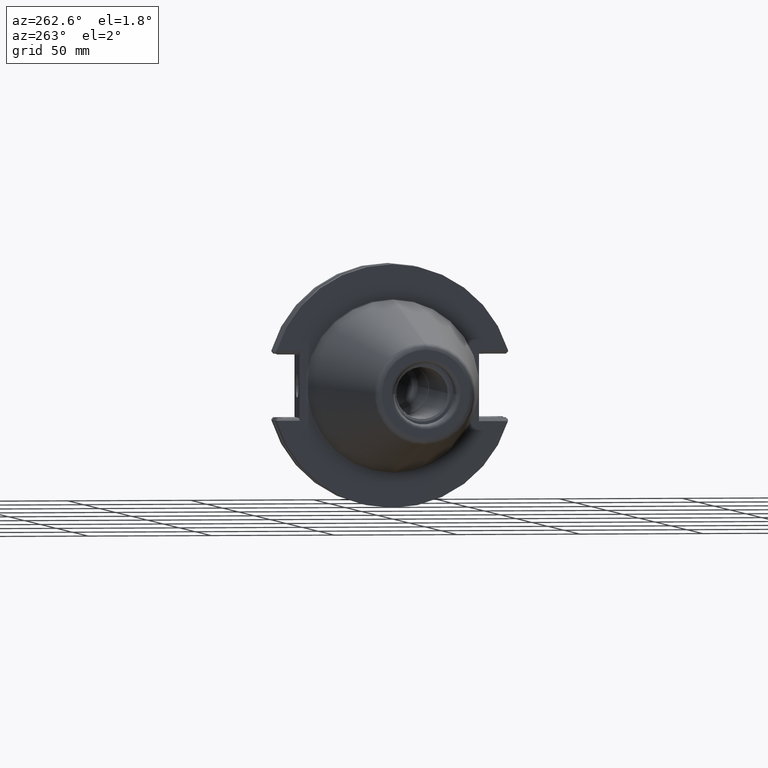
[diagram: clean part render]
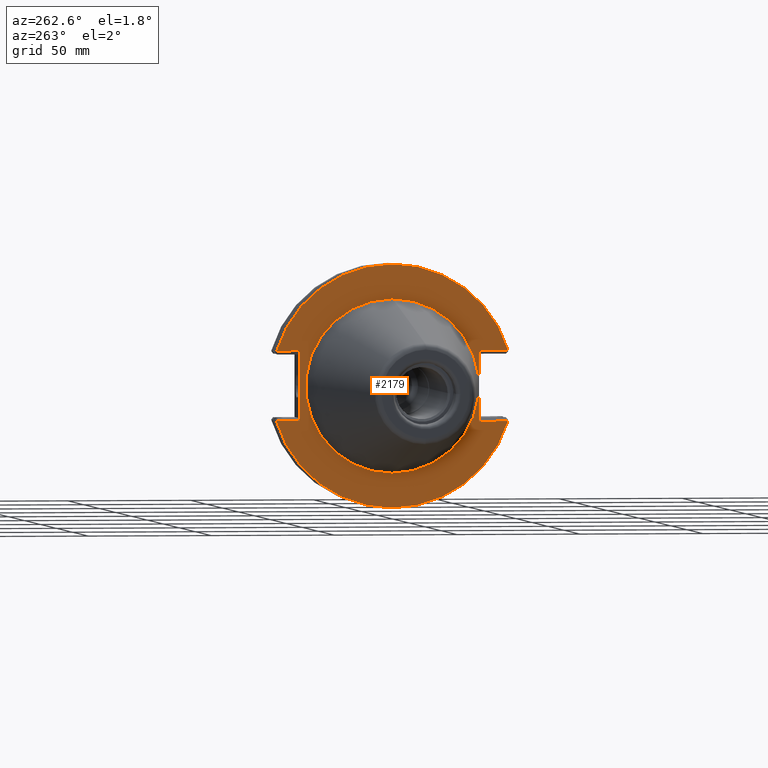
[diagram: same view with one face highlighted and labeled with its STEP entity id]
A machine part, auxiliary view. The second image highlights one B-rep face of the part: STEP entity #2179.
In plain terms, the highlighted planar face has unit normal (1, 0, 0).
Its self-contained STEP definition (entity closure, byte-faithful):
#547=CARTESIAN_POINT('',(3.15E0,0.E0,0.E0));
#548=DIRECTION('',(1.E0,0.E0,0.E0));
#549=DIRECTION('',(0.E0,0.E0,1.E0));
#550=AXIS2_PLACEMENT_3D('',#547,#548,#549);
#552=CARTESIAN_POINT('',(3.15E0,0.E0,0.E0));
#553=DIRECTION('',(1.E0,0.E0,0.E0));
#554=DIRECTION('',(0.E0,0.E0,-1.E0));
#555=AXIS2_PLACEMENT_3D('',#552,#553,#554);
#557=DIRECTION('',(0.E0,1.E0,0.E0));
#558=VECTOR('',#557,9.477745407877E0);
#559=CARTESIAN_POINT('',(3.15E0,3.7719E1,-1.385E1));
#560=LINE('',#559,#558);
#561=DIRECTION('',(0.E0,-1.E0,0.E0));
#562=VECTOR('',#561,9.354853212266E0);
#563=CARTESIAN_POINT('',(3.15E0,4.707385321227E1,1.435E1));
#564=LINE('',#563,#562);
#565=DIRECTION('',(0.E0,-1.E0,0.E0));
#566=VECTOR('',#565,1.176785321227E1);
#567=CARTESIAN_POINT('',(3.15E0,-3.5306E1,1.435E1));
#568=LINE('',#567,#566);
#569=DIRECTION('',(0.E0,1.E0,0.E0));
#570=VECTOR('',#569,1.176785321227E1);
#571=CARTESIAN_POINT('',(3.15E0,-4.707385321227E1,-1.435E1));
#572=LINE('',#571,#570);
#573=DIRECTION('',(1.390924008965E-14,5.991861250008E-1,-8.006097598747E-1));
#574=VECTOR('',#573,3.192763997083E-2);
#575=CARTESIAN_POINT('',(3.15E0,4.719674540788E1,-1.385E1));
#576=LINE('',#575,#574);
#619=DIRECTION('',(0.E0,0.E0,-1.E0));
#620=VECTOR('',#619,2.82E1);
#621=CARTESIAN_POINT('',(3.15E0,3.7719E1,1.435E1));
#622=LINE('',#621,#620);
#773=CARTESIAN_POINT('',(3.15E0,0.E0,0.E0));
#774=DIRECTION('',(-1.E0,0.E0,0.E0));
#775=DIRECTION('',(0.E0,-9.565426103585E-1,2.915925831852E-1));
#776=AXIS2_PLACEMENT_3D('',#773,#774,#775);
#791=CARTESIAN_POINT('',(3.15E0,0.E0,0.E0));
#792=DIRECTION('',(-1.E0,0.E0,0.E0));
#793=DIRECTION('',(0.E0,9.594285193142E-1,-2.819519752130E-1));
#794=AXIS2_PLACEMENT_3D('',#791,#792,#793);
#900=DIRECTION('',(0.E0,0.E0,1.E0));
#901=VECTOR('',#900,2.87E1);
#902=CARTESIAN_POINT('',(3.15E0,-3.5306E1,-1.435E1));
#903=LINE('',#902,#901);
#1051=CARTESIAN_POINT('',(3.15E0,4.721587600675E1,-1.387556158017E1));
#1053=VERTEX_POINT('',#1051);
#1123=CARTESIAN_POINT('',(3.15E0,0.E0,3.5225E1));
#1124=CARTESIAN_POINT('',(3.15E0,0.E0,-3.5225E1));
#1125=VERTEX_POINT('',#1123);
#1126=VERTEX_POINT('',#1124);
#1151=CARTESIAN_POINT('',(3.15E0,3.7719E1,-1.385E1));
#1152=CARTESIAN_POINT('',(3.15E0,4.719674540788E1,-1.385E1));
#1153=VERTEX_POINT('',#1151);
#1154=VERTEX_POINT('',#1152);
#1165=CARTESIAN_POINT('',(3.15E0,4.707385321227E1,1.435E1));
#1166=CARTESIAN_POINT('',(3.15E0,3.7719E1,1.435E1));
#1167=VERTEX_POINT('',#1165);
#1168=VERTEX_POINT('',#1166);
#1175=CARTESIAN_POINT('',(3.15E0,-4.707385321227E1,-1.435E1));
#1176=CARTESIAN_POINT('',(3.15E0,-3.5306E1,-1.435E1));
#1177=VERTEX_POINT('',#1175);
#1178=VERTEX_POINT('',#1176);
#1185=CARTESIAN_POINT('',(3.15E0,-3.5306E1,1.435E1));
#1186=CARTESIAN_POINT('',(3.15E0,-4.707385321227E1,1.435E1));
#1187=VERTEX_POINT('',#1185);
#1188=VERTEX_POINT('',#1186);
#2149=CARTESIAN_POINT('',(3.15E0,0.E0,0.E0));
#2150=DIRECTION('',(1.E0,0.E0,0.E0));
#2151=DIRECTION('',(0.E0,0.E0,1.E0));
#2152=AXIS2_PLACEMENT_3D('',#2149,#2150,#2151);
#2153=PLANE('',#2152);
#2154=ORIENTED_EDGE('',*,*,#2139,.F.);
#2156=ORIENTED_EDGE('',*,*,#2155,.F.);
#2158=ORIENTED_EDGE('',*,*,#2157,.F.);
#2160=ORIENTED_EDGE('',*,*,#2159,.F.);
#2162=ORIENTED_EDGE('',*,*,#2161,.F.);
#2164=ORIENTED_EDGE('',*,*,#2163,.F.);
#2166=ORIENTED_EDGE('',*,*,#2165,.F.);
#2168=ORIENTED_EDGE('',*,*,#2167,.F.);
#2170=ORIENTED_EDGE('',*,*,#2169,.F.);
#2171=EDGE_LOOP('',(#2154,#2156,#2158,#2160,#2162,#2164,#2166,#2168,#2170));
#2172=FACE_OUTER_BOUND('',#2171,.F.);
#2174=ORIENTED_EDGE('',*,*,#2173,.F.);
#2176=ORIENTED_EDGE('',*,*,#2175,.F.);
#2177=EDGE_LOOP('',(#2174,#2176));
#2178=FACE_BOUND('',#2177,.F.);
#2179=ADVANCED_FACE('',(#2172,#2178),#2153,.F.);
#551=CIRCLE('',#550,3.5225E1);
#556=CIRCLE('',#555,3.5225E1);
#777=CIRCLE('',#776,4.92125E1);
#795=CIRCLE('',#794,4.92125E1);
#2139=EDGE_CURVE('',#1153,#1154,#560,.T.);
#2155=EDGE_CURVE('',#1168,#1153,#622,.T.);
#2157=EDGE_CURVE('',#1167,#1168,#564,.T.);
#2159=EDGE_CURVE('',#1188,#1167,#777,.T.);
#2161=EDGE_CURVE('',#1187,#1188,#568,.T.);
#2163=EDGE_CURVE('',#1178,#1187,#903,.T.);
#2165=EDGE_CURVE('',#1177,#1178,#572,.T.);
#2167=EDGE_CURVE('',#1053,#1177,#795,.T.);
#2169=EDGE_CURVE('',#1154,#1053,#576,.T.);
#2173=EDGE_CURVE('',#1125,#1126,#551,.T.);
#2175=EDGE_CURVE('',#1126,#1125,#556,.T.);